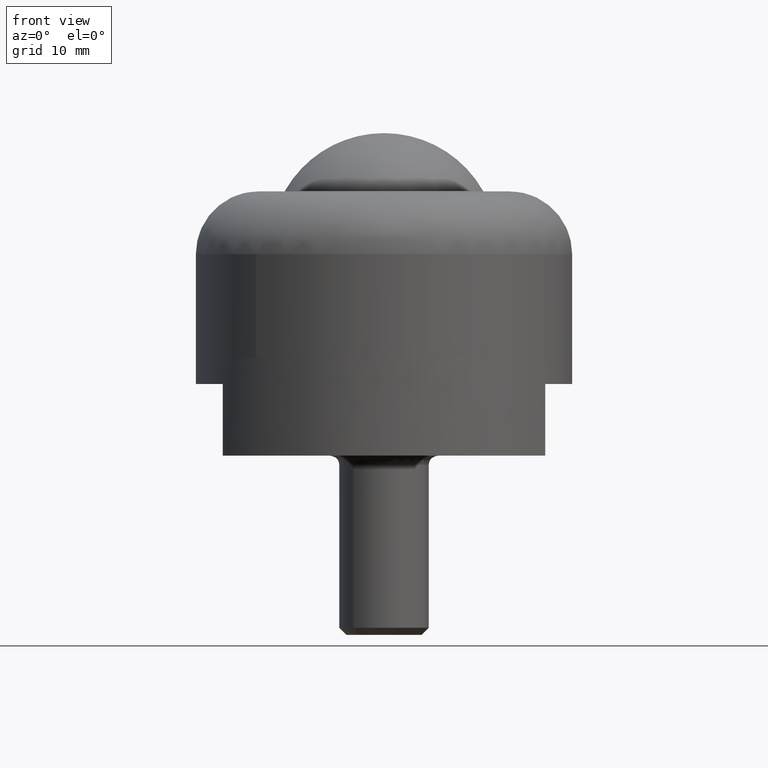
[diagram: clean part render]
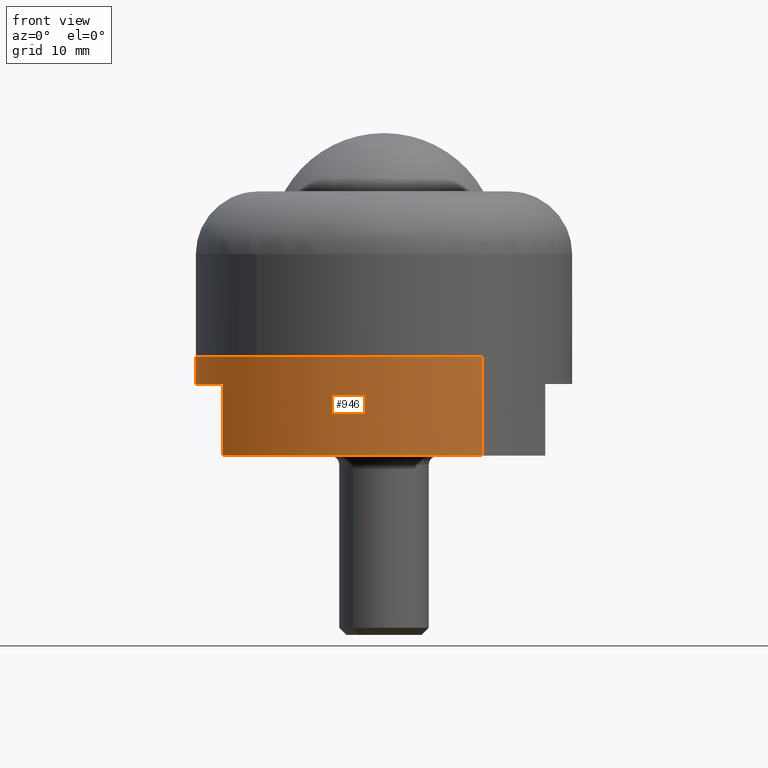
[diagram: same view with one face highlighted and labeled with its STEP entity id]
A machine part, front view. The second image highlights one B-rep face of the part: STEP entity #946.
In plain terms, the highlighted face is a freeform B-spline surface patch.
Its self-contained STEP definition (entity closure, byte-faithful):
#594=CARTESIAN_POINT('',(-18.0,-10.816653826392081,-2.999999999999890));
#595=VERTEX_POINT('',#594);
#596=CARTESIAN_POINT('',(-18.0,10.816653826392081,-2.999999999999890));
#597=VERTEX_POINT('',#596);
#603=CARTESIAN_POINT('',(-18.0,-10.816653826392081,-2.999999999999890));
#604=CARTESIAN_POINT('',(-18.518272285641078,-9.954302101341735,-2.999999999999889));
#605=CARTESIAN_POINT('',(-19.390225633279830,-8.234285500497679,-2.999999999999888));
#606=CARTESIAN_POINT('',(-20.230770941737859,-5.795067408385219,-2.999999999999904));
#607=CARTESIAN_POINT('',(-20.786282146024892,-3.308751073584634,-2.999999999999877));
#608=CARTESIAN_POINT('',(-21.043919973451899,-0.830383914730000,-2.999999999999882));
#609=CARTESIAN_POINT('',(-20.972202386517939,1.777570322526595,-2.999999999999899));
#610=CARTESIAN_POINT('',(-20.615633426347650,4.241335362935213,-2.999999999999878));
#611=CARTESIAN_POINT('',(-20.082149212292450,6.246882978568689,-2.999999999999897));
#612=CARTESIAN_POINT('',(-19.253121866344070,8.497140144097134,-2.999999999999899));
#613=CARTESIAN_POINT('',(-18.564018267227599,9.878218640584031,-2.999999999999879));
#614=CARTESIAN_POINT('',(-18.0,10.816653826392081,-2.999999999999890));
#615=B_SPLINE_CURVE_WITH_KNOTS('',3,(#603,#604,#605,#606,#607,#608,#609,#610,#611,#612,#613,#614),.UNSPECIFIED.,.F.,.U.,(4,1,1,1,1,1,1,1,1,4),(0.000000011714583,3.018322035879052,5.770323606497662,7.723361823333363,10.652905422518559,13.227354704216269,15.535485115898529,18.109939719177451,19.441553524177930,22.726197012007109),.UNSPECIFIED.);
#616=EDGE_CURVE('',#595,#597,#615,.T.);
#626=CARTESIAN_POINT('',(-18.0,-10.816653826392081,-11.0));
#627=VERTEX_POINT('',#626);
#628=CARTESIAN_POINT('',(-18.0,10.816653826392100,-11.0));
#629=VERTEX_POINT('',#628);
#635=CARTESIAN_POINT('',(-10.971620108010400,17.905964151798781,-11.0));
#636=VERTEX_POINT('',#635);
#637=CARTESIAN_POINT('',(-18.0,10.816653826392100,-11.0));
#638=CARTESIAN_POINT('',(-17.391676262311591,11.829130809956020,-10.999999999999950));
#639=CARTESIAN_POINT('',(-16.111513688414600,13.601501920320130,-11.000000000000060));
#640=CARTESIAN_POINT('',(-13.740048845833771,15.993494653178139,-11.0));
#641=CARTESIAN_POINT('',(-11.978817758098520,17.288935282974549,-11.000000000000060));
#642=CARTESIAN_POINT('',(-10.971620108010400,17.905964151798781,-11.0));
#643=B_SPLINE_CURVE_WITH_KNOTS('',3,(#637,#638,#639,#640,#641,#642),.UNSPECIFIED.,.F.,.U.,(4,1,1,4),(2.170600E-009,3.543500553723250,6.535781766090368,10.079282317643450),.UNSPECIFIED.);
#644=EDGE_CURVE('',#629,#636,#643,.T.);
#674=CARTESIAN_POINT('',(10.971620108010310,-17.905964151798798,-11.0));
#675=VERTEX_POINT('',#674);
#686=CARTESIAN_POINT('',(10.971620108010310,-17.905964151798798,-11.0));
#687=CARTESIAN_POINT('',(10.198322566323030,-18.379830205899658,-10.999999999999980));
#688=CARTESIAN_POINT('',(8.705063649454324,-19.166592769680999,-11.000000000000011));
#689=CARTESIAN_POINT('',(6.320866369200654,-20.076691689362239,-11.000000000000030));
#690=CARTESIAN_POINT('',(4.139355736619171,-20.627712618017242,-10.999999999999931));
#691=CARTESIAN_POINT('',(1.700350168081247,-20.977743265229631,-11.000000000000091));
#692=CARTESIAN_POINT('',(-0.982943491333768,-21.054023252796259,-10.999999999999950));
#693=CARTESIAN_POINT('',(-3.907363460175956,-20.702317144493879,-10.999999999999989));
#694=CARTESIAN_POINT('',(-6.710122166858460,-19.961247467055529,-11.000000000000149));
#695=CARTESIAN_POINT('',(-8.953935536535070,-19.043982977503742,-10.999999999999661));
#696=CARTESIAN_POINT('',(-11.155293775083930,-17.843921761532020,-11.000000000000520));
#697=CARTESIAN_POINT('',(-13.425838436327640,-16.256583858003779,-10.999999999999631));
#698=CARTESIAN_POINT('',(-15.897648505301820,-13.886401795818470,-11.000000000000270));
#699=CARTESIAN_POINT('',(-17.354987779328560,-11.890228724861030,-10.999999999999840));
#700=CARTESIAN_POINT('',(-18.0,-10.816653826392081,-11.0));
#701=B_SPLINE_CURVE_WITH_KNOTS('',3,(#686,#687,#688,#689,#690,#691,#692,#693,#694,#695,#696,#697,#698,#699,#700),.UNSPECIFIED.,.F.,.U.,(4,1,1,1,1,1,1,1,1,1,1,1,4),(0.000000010734368,2.720815802556281,5.052937392746451,7.644195928176305,9.458076561202553,12.438027597410001,15.677103013581620,18.268335181458649,21.118713615901040,22.932585674887459,25.782972198038308,29.410737717392049,33.168041826833580),.UNSPECIFIED.);
#702=EDGE_CURVE('',#675,#627,#701,.T.);
#749=CARTESIAN_POINT('',(-18.0,-10.816653826392081,-2.999999999999890));
#750=CARTESIAN_POINT('',(-18.0,-10.816653826392081,-11.0));
#751=QUASI_UNIFORM_CURVE('',1,(#749,#750),.UNSPECIFIED.,.F.,.U.);
#752=EDGE_CURVE('',#595,#627,#751,.T.);
#755=CARTESIAN_POINT('',(-18.0,10.816653826392081,-2.999999999999890));
#756=CARTESIAN_POINT('',(-18.0,10.816653826392100,-11.0));
#757=QUASI_UNIFORM_CURVE('',1,(#755,#756),.UNSPECIFIED.,.F.,.U.);
#758=EDGE_CURVE('',#597,#629,#757,.T.);
#804=CARTESIAN_POINT('',(-10.971620106373731,17.905964152801619,-2.498002E-016));
#805=VERTEX_POINT('',#804);
#838=CARTESIAN_POINT('',(10.971620106373640,-17.905964152801619,-2.498002E-016));
#839=VERTEX_POINT('',#838);
#854=CARTESIAN_POINT('',(10.971620106373640,-17.905964152801619,-2.498002E-016));
#855=CARTESIAN_POINT('',(10.971620108010310,-17.905964151798798,-11.0));
#856=QUASI_UNIFORM_CURVE('',1,(#854,#855),.UNSPECIFIED.,.F.,.U.);
#857=EDGE_CURVE('',#839,#675,#856,.T.);
#864=CARTESIAN_POINT('',(-10.971620106373731,17.905964152801619,-2.498002E-016));
#865=CARTESIAN_POINT('',(-10.971620108010400,17.905964151798781,-11.0));
#866=QUASI_UNIFORM_CURVE('',1,(#864,#865),.UNSPECIFIED.,.F.,.U.);
#867=EDGE_CURVE('',#805,#636,#866,.T.);
#872=CARTESIAN_POINT('',(10.971620093027900,-17.905964160979021,0.275000000000000));
#873=CARTESIAN_POINT('',(-6.934344067951114,-28.877584254006972,0.275000000000000));
#874=CARTESIAN_POINT('',(-17.905964160979071,-10.971620093027949,0.275000000000000));
#875=CARTESIAN_POINT('',(-28.877584254007015,6.934344067951066,0.275000000000000));
#876=CARTESIAN_POINT('',(-10.971620093027999,17.905964160979021,0.275000000000000));
#877=CARTESIAN_POINT('',(10.971620093027900,-17.905964160979021,-11.281875000000010));
#878=CARTESIAN_POINT('',(-6.934344067951114,-28.877584254006972,-11.281875000000005));
#879=CARTESIAN_POINT('',(-17.905964160979071,-10.971620093027949,-11.281875000000010));
#880=CARTESIAN_POINT('',(-28.877584254007015,6.934344067951066,-11.281875000000005));
#881=CARTESIAN_POINT('',(-10.971620093027999,17.905964160979021,-11.281875000000010));
#889=(BOUNDED_SURFACE()B_SPLINE_SURFACE(2,1,((#872,#877),(#873,#878),(#874,#879),(#875,#880),(#876,#881)),.UNSPECIFIED.,.F.,.F.,.U.)B_SPLINE_SURFACE_WITH_KNOTS((3,2,3),(2,2),(0.0,34.793939239339970,69.587878478679940),(0.0,11.556875000000010),.UNSPECIFIED.)GEOMETRIC_REPRESENTATION_ITEM()RATIONAL_B_SPLINE_SURFACE(((1.0,1.0),(0.707106781186548,0.707106781186548),(1.0,1.0),(0.707106781186548,0.707106781186548),(1.0,1.0)))REPRESENTATION_ITEM('')SURFACE());
#890=CARTESIAN_POINT('',(-21.000000000000050,0.0,0.0));
#891=VERTEX_POINT('',#890);
#892=CARTESIAN_POINT('',(-21.000000000000050,0.0,0.0));
#893=CARTESIAN_POINT('',(-21.000085781807471,1.144715252266004,-1.596954E-017));
#894=CARTESIAN_POINT('',(-20.848937924920509,2.987387706192070,-4.167606E-017));
#895=CARTESIAN_POINT('',(-20.251024310670019,5.746760836155354,-8.017116E-017));
#896=CARTESIAN_POINT('',(-19.445854090919930,8.074346858550914,-1.126425E-016));
#897=CARTESIAN_POINT('',(-18.182982940252721,10.631806488511970,-1.483208E-016));
#898=CARTESIAN_POINT('',(-16.775938083541540,12.722854202137979,-1.774923E-016));
#899=CARTESIAN_POINT('',(-14.959882075925000,14.810476698143130,-2.066161E-016));
#900=CARTESIAN_POINT('',(-13.132615509476800,16.462913033182119,-2.296687E-016));
#901=CARTESIAN_POINT('',(-11.638193947569100,17.497539588651090,-2.441024E-016));
#902=CARTESIAN_POINT('',(-10.971620106373731,17.905964152801619,-2.498002E-016));
#903=B_SPLINE_CURVE_WITH_KNOTS('',3,(#892,#893,#894,#895,#896,#897,#898,#899,#900,#901,#902),.UNSPECIFIED.,.F.,.U.,(4,1,1,1,1,1,1,1,4),(9.983786E-009,3.434130097232988,5.528114298115627,8.459691236033262,10.804935078160300,14.071556420049800,15.998026095892520,19.097129071313041,21.442380672718869),.UNSPECIFIED.);
#904=EDGE_CURVE('',#891,#805,#903,.T.);
#905=ORIENTED_EDGE('',*,*,#904,.T.);
#906=ORIENTED_EDGE('',*,*,#867,.T.);
#907=ORIENTED_EDGE('',*,*,#644,.F.);
#908=ORIENTED_EDGE('',*,*,#758,.F.);
#909=ORIENTED_EDGE('',*,*,#616,.F.);
#910=ORIENTED_EDGE('',*,*,#752,.T.);
#911=ORIENTED_EDGE('',*,*,#702,.F.);
#912=ORIENTED_EDGE('',*,*,#857,.F.);
#913=CARTESIAN_POINT('',(-2.486900E-014,-21.0,0.0));
#914=VERTEX_POINT('',#913);
#915=CARTESIAN_POINT('',(10.971620106373640,-17.905964152801619,-2.498002E-016));
#916=CARTESIAN_POINT('',(9.792541469075756,-18.628653625863951,-2.229551E-016));
#917=CARTESIAN_POINT('',(7.725955990318367,-19.628996606619161,-1.759034E-016));
#918=CARTESIAN_POINT('',(4.866101104436367,-20.475357726673820,-1.107907E-016));
#919=CARTESIAN_POINT('',(2.435133212671763,-20.902500836481561,-5.544274E-017));
#920=CARTESIAN_POINT('',(0.871840533072979,-21.000028553002100,-1.984993E-017));
#921=CARTESIAN_POINT('',(-2.486900E-014,-21.0,0.0));
#922=B_SPLINE_CURVE_WITH_KNOTS('',3,(#915,#916,#917,#918,#919,#920,#921),.UNSPECIFIED.,.F.,.U.,(4,1,1,1,4),(3.118737E-009,4.148759107393631,6.854461552533076,8.928845330041609,11.544365275281720),.UNSPECIFIED.);
#923=EDGE_CURVE('',#839,#914,#922,.T.);
#924=ORIENTED_EDGE('',*,*,#923,.T.);
#925=CARTESIAN_POINT('',(-2.486900E-014,-21.0,0.0));
#926=CARTESIAN_POINT('',(-1.202646164567138,-21.000096817140101,0.0));
#927=CARTESIAN_POINT('',(-3.006567829361094,-20.844602631810861,0.0));
#928=CARTESIAN_POINT('',(-5.442767262886494,-20.313166981388939,0.0));
#929=CARTESIAN_POINT('',(-7.533534948437003,-19.650842742061489,0.0));
#930=CARTESIAN_POINT('',(-10.087726832858120,-18.509346585497799,0.0));
#931=CARTESIAN_POINT('',(-12.518450380956100,-16.949131061429139,0.0));
#932=CARTESIAN_POINT('',(-14.700788652202270,-15.066532348140329,0.0));
#933=CARTESIAN_POINT('',(-16.208887745163359,-13.412824950094580,0.0));
#934=CARTESIAN_POINT('',(-17.509399308256341,-11.647977175034731,0.0));
#935=CARTESIAN_POINT('',(-18.465051779764920,-10.064590146684839,0.0));
#936=CARTESIAN_POINT('',(-19.514306172796850,-7.898091844229191,0.0));
#937=CARTESIAN_POINT('',(-20.355341428619820,-5.453420895423347,0.0));
#938=CARTESIAN_POINT('',(-20.891805640615502,-2.620026225988265,0.0));
#939=CARTESIAN_POINT('',(-21.000021235095609,-0.859023929436675,0.0));
#940=CARTESIAN_POINT('',(-21.000000000000050,0.0,0.0));
#941=B_SPLINE_CURVE_WITH_KNOTS('',3,(#925,#926,#927,#928,#929,#930,#931,#932,#933,#934,#935,#936,#937,#938,#939,#940),.UNSPECIFIED.,.F.,.U.,(4,1,1,1,1,1,1,1,1,1,1,1,1,4),(9.834352E-009,3.607920982806999,5.411886077335836,7.473566190221156,10.179517777731469,13.787451577653650,16.106839547461831,18.812753257782379,20.487874004348480,22.678402563238279,24.353517372939191,27.703745214002591,30.409699078743209,32.986774609286151),.UNSPECIFIED.);
#942=EDGE_CURVE('',#914,#891,#941,.T.);
#943=ORIENTED_EDGE('',*,*,#942,.T.);
#944=EDGE_LOOP('',(#905,#906,#907,#908,#909,#910,#911,#912,#924,#943));
#945=FACE_OUTER_BOUND('',#944,.T.);
#946=ADVANCED_FACE('',(#945),#889,.T.);